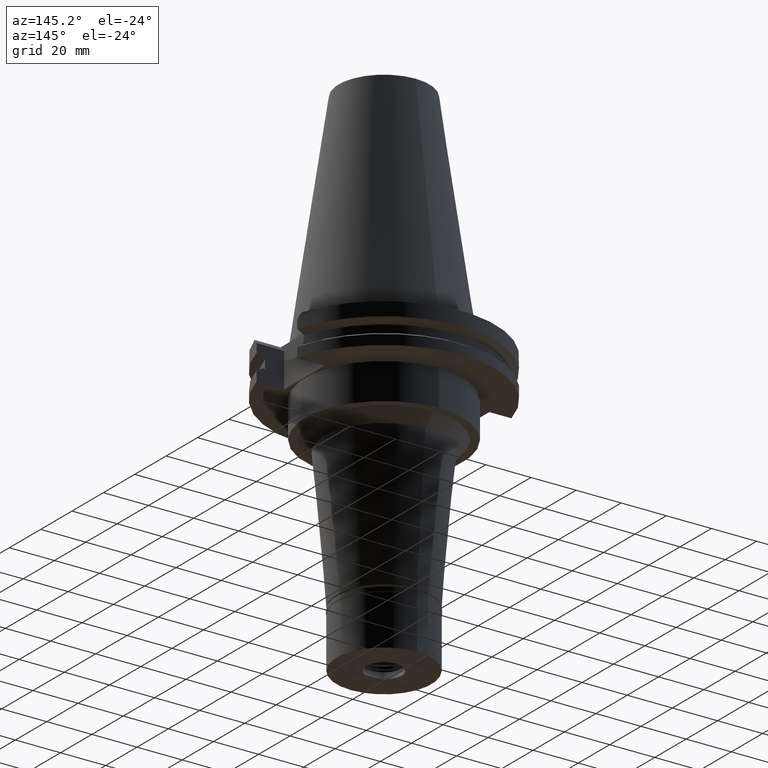
[diagram: clean part render]
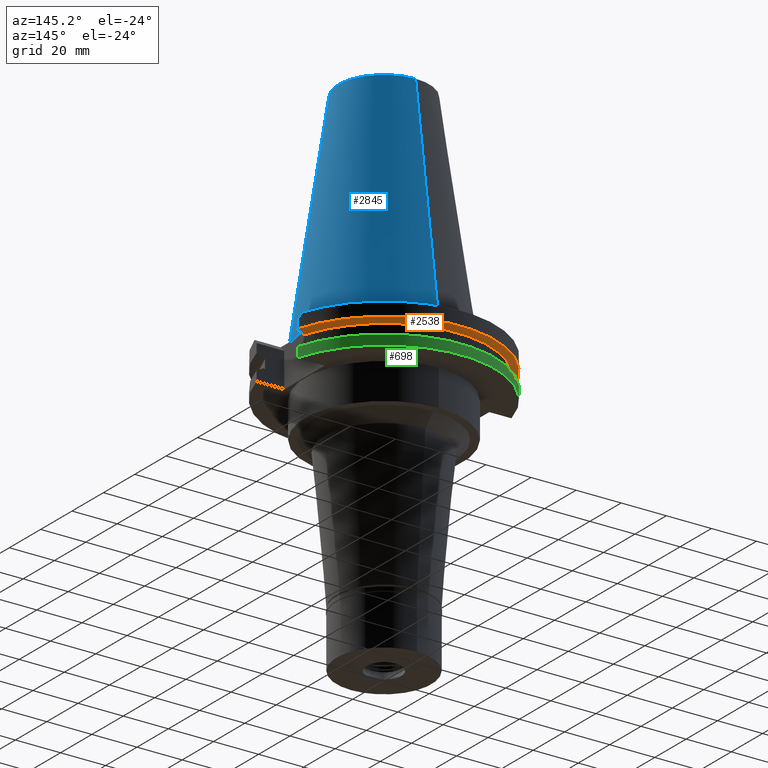
[diagram: same view with three faces highlighted in distinct colors, each labeled with its STEP entity id]
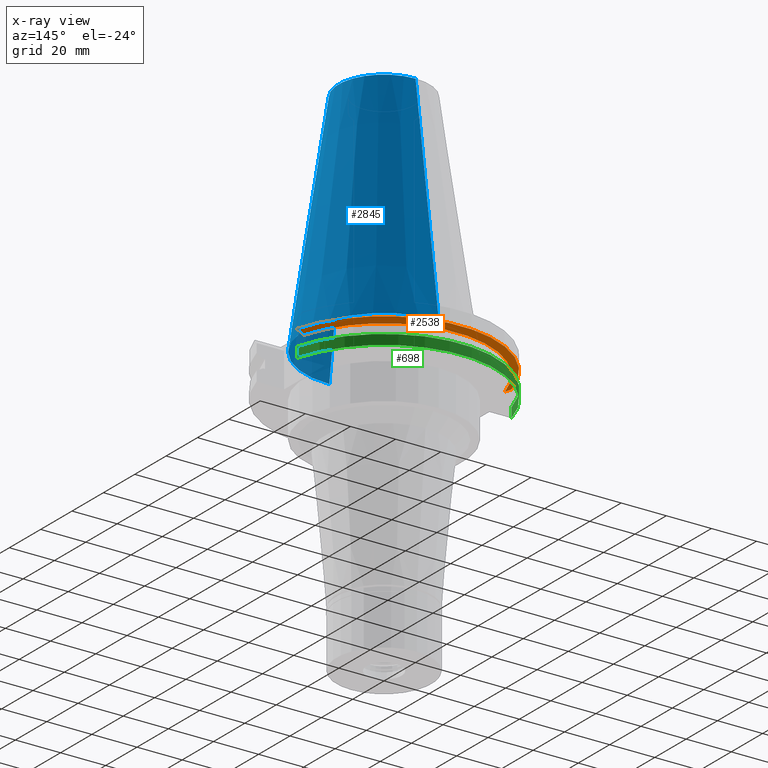
[diagram: x-ray of the same camera — body ghosted, the three highlighted faces saturated]
A machine part, auxiliary view with three faces highlighted in distinct colors.
The next image is the same camera in x-ray (body ghosted, the three faces saturated) — at least one of them is partly hidden behind the body in this view.
Their STEP definitions:

[orange] entity #2538 — the highlighted conical surface has half-angle 60 deg.
#16 = CARTESIAN_POINT ( 'NONE',  ( -44.58657636813000380, 12.95500000000000007, -9.207500000000999663 ) ) ;
#25 = B_SPLINE_CURVE_WITH_KNOTS ( 'NONE', 3,
 ( #498, #189, #1224, #790 ),
 .UNSPECIFIED., .F., .F.,
 ( 4, 4 ),
 ( 0.0000000000000000000, 1.000000000000000000 ),
 .UNSPECIFIED. ) ;
#154 = CARTESIAN_POINT ( 'NONE',  ( 0.0000000000000000000, 1.121722380078999823E-14, -7.601333230925999551 ) ) ;
#189 = CARTESIAN_POINT ( 'NONE',  ( 45.52193300765439687, 12.95500000000000007, -8.688918499396308448 ) ) ;
#222 = VERTEX_POINT ( 'NONE', #1361 ) ;
#331 = AXIS2_PLACEMENT_3D ( 'NONE', #1828, #825, #522 ) ;
#431 = ORIENTED_EDGE ( 'NONE', *, *, #638, .T. ) ;
#498 = CARTESIAN_POINT ( 'NONE',  ( 44.58657636813000380, 12.95500000000000007, -9.207500000000999663 ) ) ;
#522 = DIRECTION ( 'NONE',  ( 0.0000000000000000000, 1.000000000000000000, 0.0000000000000000000 ) ) ;
#627 = B_SPLINE_CURVE_WITH_KNOTS ( 'NONE', 3,
 ( #2330, #2377, #2360, #16 ),
 .UNSPECIFIED., .F., .F.,
 ( 4, 4 ),
 ( 0.0000000000000000000, 1.000000000000000000 ),
 .UNSPECIFIED. ) ;
#638 = EDGE_CURVE ( 'NONE', #222, #1246, #2103, .T. ) ;
#766 = CARTESIAN_POINT ( 'NONE',  ( 0.0000000000000000000, 1.121722380078999823E-14, -9.207500000002999840 ) ) ;
#790 = CARTESIAN_POINT ( 'NONE',  ( 47.47671146204000081, 12.95500000000000007, -7.601333230924999462 ) ) ;
#825 = DIRECTION ( 'NONE',  ( 0.0000000000000000000, 0.0000000000000000000, 1.000000000000000000 ) ) ;
#931 = EDGE_CURVE ( 'NONE', #3238, #1246, #627, .T. ) ;
#1036 = ORIENTED_EDGE ( 'NONE', *, *, #931, .F. ) ;
#1191 = DIRECTION ( 'NONE',  ( 0.9647287063660957562, 0.2632461264922989486, 0.0000000000000000000 ) ) ;
#1216 = DIRECTION ( 'NONE',  ( 0.0000000000000000000, 0.0000000000000000000, 1.000000000000000000 ) ) ;
#1224 = CARTESIAN_POINT ( 'NONE',  ( 46.48531137229106491, 12.95500000000000007, -8.153529576370974752 ) ) ;
#1244 = EDGE_CURVE ( 'NONE', #222, #2148, #25, .T. ) ;
#1245 = DIRECTION ( 'NONE',  ( 0.0000000000000000000, 0.0000000000000000000, 1.000000000000000000 ) ) ;
#1246 = VERTEX_POINT ( 'NONE', #1553 ) ;
#1361 = CARTESIAN_POINT ( 'NONE',  ( 44.58657636813000380, 12.95500000000000007, -9.207500000000999663 ) ) ;
#1553 = CARTESIAN_POINT ( 'NONE',  ( -44.58657636813000380, 12.95500000000000007, -9.207500000000999663 ) ) ;
#1643 = CARTESIAN_POINT ( 'NONE',  ( 47.47671146204000081, 12.95500000000000007, -7.601333230924999462 ) ) ;
#1670 = CARTESIAN_POINT ( 'NONE',  ( -47.47671146204000081, 12.95500000000000007, -7.601333230924999462 ) ) ;
#1828 = CARTESIAN_POINT ( 'NONE',  ( 0.0000000000000000000, 1.121722380078999823E-14, -8.404416615464000984 ) ) ;
#1865 = ORIENTED_EDGE ( 'NONE', *, *, #2362, .F. ) ;
#1958 = AXIS2_PLACEMENT_3D ( 'NONE', #766, #1245, #2275 ) ;
#2083 = AXIS2_PLACEMENT_3D ( 'NONE', #154, #1216, #1191 ) ;
#2103 = CIRCLE ( 'NONE', #1958, 46.43053755052999776 ) ;
#2148 = VERTEX_POINT ( 'NONE', #1643 ) ;
#2275 = DIRECTION ( 'NONE',  ( 0.0000000000000000000, 1.000000000000000000, 0.0000000000000000000 ) ) ;
#2330 = CARTESIAN_POINT ( 'NONE',  ( -47.47671146204000081, 12.95500000000000007, -7.601333230924999462 ) ) ;
#2360 = CARTESIAN_POINT ( 'NONE',  ( -45.52193301400963321, 12.95500000000000007, -8.688918495860947999 ) ) ;
#2362 = EDGE_CURVE ( 'NONE', #2148, #3238, #2694, .T. ) ;
#2377 = CARTESIAN_POINT ( 'NONE',  ( -46.48531137864629414, 12.95500000000000007, -8.153529572835616079 ) ) ;
#2538 = ADVANCED_FACE ( 'NONE', ( #3159 ), #3262, .T. ) ;
#2694 = CIRCLE ( 'NONE', #2083, 49.21250000000001279 ) ;
#2763 = EDGE_LOOP ( 'NONE', ( #2962, #431, #1036, #1865 ) ) ;
#2962 = ORIENTED_EDGE ( 'NONE', *, *, #1244, .F. ) ;
#3159 = FACE_OUTER_BOUND ( 'NONE', #2763, .T. ) ;
#3238 = VERTEX_POINT ( 'NONE', #1670 ) ;
#3262 = CONICAL_SURFACE ( 'NONE', #331, 47.82151877527000039, 1.047197551196400456 ) ;

[blue] entity #2845 — the highlighted conical surface has half-angle 8.297 deg.
#8 = DIRECTION ( 'NONE',  ( 0.0000000000000000000, 1.000000000000000000, 0.0000000000000000000 ) ) ;
#71 = DIRECTION ( 'NONE',  ( 0.0000000000000000000, 1.000000000000000000, 0.0000000000000000000 ) ) ;
#102 = VERTEX_POINT ( 'NONE', #942 ) ;
#188 = VECTOR ( 'NONE', #1457, 1000.000000000000114 ) ;
#270 = DIRECTION ( 'NONE',  ( 0.0000000000000000000, 0.1443069799456937474, -0.9895329683941577192 ) ) ;
#303 = VERTEX_POINT ( 'NONE', #1017 ) ;
#316 = EDGE_LOOP ( 'NONE', ( #2234, #1445, #1660, #1769 ) ) ;
#449 = LINE ( 'NONE', #2007, #188 ) ;
#701 = DIRECTION ( 'NONE',  ( 0.0000000000000000000, -1.000000000000000000, 0.0000000000000000000 ) ) ;
#769 = LINE ( 'NONE', #1272, #3019 ) ;
#942 = CARTESIAN_POINT ( 'NONE',  ( 0.0000000000000000000, -34.92499999999999716, 4.902744876745000264E-13 ) ) ;
#943 = CARTESIAN_POINT ( 'NONE',  ( 0.0000000000000000000, -20.10832422388000040, 101.5999999999999943 ) ) ;
#954 = DIRECTION ( 'NONE',  ( 0.0000000000000000000, 0.0000000000000000000, -1.000000000000000000 ) ) ;
#994 = AXIS2_PLACEMENT_3D ( 'NONE', #2505, #2787, #701 ) ;
#1017 = CARTESIAN_POINT ( 'NONE',  ( 0.0000000000000000000, 34.92499999999999716, 4.902744876745000264E-13 ) ) ;
#1161 = CONICAL_SURFACE ( 'NONE', #994, 27.51666211194000056, 0.1448125860318199565 ) ;
#1272 = CARTESIAN_POINT ( 'NONE',  ( 0.0000000000000000000, 20.10832422387000307, 101.5999999999999943 ) ) ;
#1340 = EDGE_CURVE ( 'NONE', #3061, #1582, #2956, .T. ) ;
#1374 = CARTESIAN_POINT ( 'NONE',  ( 0.0000000000000000000, 1.846767373113999857E-14, 8.242295734816999588E-13 ) ) ;
#1445 = ORIENTED_EDGE ( 'NONE', *, *, #2827, .T. ) ;
#1457 = DIRECTION ( 'NONE',  ( 0.0000000000000000000, -0.1443069799456937474, -0.9895329683941577192 ) ) ;
#1582 = VERTEX_POINT ( 'NONE', #943 ) ;
#1660 = ORIENTED_EDGE ( 'NONE', *, *, #3157, .F. ) ;
#1746 = EDGE_CURVE ( 'NONE', #3061, #303, #769, .T. ) ;
#1769 = ORIENTED_EDGE ( 'NONE', *, *, #1746, .F. ) ;
#1825 = CARTESIAN_POINT ( 'NONE',  ( 0.0000000000000000000, 20.10832422388000040, 101.5999999999999943 ) ) ;
#2007 = CARTESIAN_POINT ( 'NONE',  ( 0.0000000000000000000, -20.10832422387000307, 101.5999999999999943 ) ) ;
#2191 = CIRCLE ( 'NONE', #3122, 34.92499999999999716 ) ;
#2234 = ORIENTED_EDGE ( 'NONE', *, *, #1340, .T. ) ;
#2333 = CARTESIAN_POINT ( 'NONE',  ( 0.0000000000000000000, 1.846767373113999857E-14, 101.5999999999999943 ) ) ;
#2505 = CARTESIAN_POINT ( 'NONE',  ( 0.0000000000000000000, 1.846767373113999857E-14, 50.79999999999999716 ) ) ;
#2744 = AXIS2_PLACEMENT_3D ( 'NONE', #2333, #954, #8 ) ;
#2787 = DIRECTION ( 'NONE',  ( 0.0000000000000000000, 0.0000000000000000000, -1.000000000000000000 ) ) ;
#2827 = EDGE_CURVE ( 'NONE', #1582, #102, #449, .T. ) ;
#2845 = ADVANCED_FACE ( 'NONE', ( #3047 ), #1161, .T. ) ;
#2956 = CIRCLE ( 'NONE', #2744, 20.10832422388000040 ) ;
#3019 = VECTOR ( 'NONE', #270, 1000.000000000000114 ) ;
#3047 = FACE_OUTER_BOUND ( 'NONE', #316, .T. ) ;
#3061 = VERTEX_POINT ( 'NONE', #1825 ) ;
#3122 = AXIS2_PLACEMENT_3D ( 'NONE', #1374, #3223, #71 ) ;
#3157 = EDGE_CURVE ( 'NONE', #303, #102, #2191, .T. ) ;
#3223 = DIRECTION ( 'NONE',  ( 0.0000000000000000000, 0.0000000000000000000, -1.000000000000000000 ) ) ;

[green] entity #698 — the highlighted cylindrical surface (partial cylindrical patch) has radius 49.2125 mm, axis along (0, 0, -1).
#53 = AXIS2_PLACEMENT_3D ( 'NONE', #816, #267, #1851 ) ;
#67 = VECTOR ( 'NONE', #2205, 1000.000000000000000 ) ;
#89 = CARTESIAN_POINT ( 'NONE',  ( 47.47671146204000081, 12.95500000000000007, -19.05000000000000071 ) ) ;
#191 = VERTEX_POINT ( 'NONE', #89 ) ;
#267 = DIRECTION ( 'NONE',  ( 0.0000000000000000000, 0.0000000000000000000, -1.000000000000000000 ) ) ;
#332 = CYLINDRICAL_SURFACE ( 'NONE', #53, 49.21249999999999858 ) ;
#355 = CARTESIAN_POINT ( 'NONE',  ( 0.0000000000000000000, 1.055026073064999954E-14, -14.65366676908000088 ) ) ;
#371 = LINE ( 'NONE', #1112, #513 ) ;
#513 = VECTOR ( 'NONE', #2955, 1000.000000000000000 ) ;
#518 = EDGE_CURVE ( 'NONE', #730, #2352, #697, .T. ) ;
#594 = DIRECTION ( 'NONE',  ( 0.0000000000000000000, 1.000000000000000000, 0.0000000000000000000 ) ) ;
#697 = CIRCLE ( 'NONE', #1292, 49.21250000000001279 ) ;
#698 = ADVANCED_FACE ( 'NONE', ( #1076 ), #332, .T. ) ;
#730 = VERTEX_POINT ( 'NONE', #3187 ) ;
#816 = CARTESIAN_POINT ( 'NONE',  ( 0.0000000000000000000, 2.604272650726999704E-14, 112.6550000000000011 ) ) ;
#850 = ORIENTED_EDGE ( 'NONE', *, *, #1081, .F. ) ;
#951 = VERTEX_POINT ( 'NONE', #1357 ) ;
#1001 = AXIS2_PLACEMENT_3D ( 'NONE', #1359, #1602, #594 ) ;
#1076 = FACE_OUTER_BOUND ( 'NONE', #1493, .T. ) ;
#1081 = EDGE_CURVE ( 'NONE', #730, #951, #1687, .T. ) ;
#1112 = CARTESIAN_POINT ( 'NONE',  ( 47.47671146204000081, 12.95500000000000007, -19.05000000000000071 ) ) ;
#1292 = AXIS2_PLACEMENT_3D ( 'NONE', #355, #1377, #2954 ) ;
#1324 = CIRCLE ( 'NONE', #1001, 49.21249999999999858 ) ;
#1357 = CARTESIAN_POINT ( 'NONE',  ( -47.47671146204000081, 12.95500000000000007, -19.05000000000000071 ) ) ;
#1359 = CARTESIAN_POINT ( 'NONE',  ( 0.0000000000000000000, 2.604272650726999704E-14, -19.05000000000000071 ) ) ;
#1377 = DIRECTION ( 'NONE',  ( 0.0000000000000000000, 0.0000000000000000000, -1.000000000000000000 ) ) ;
#1395 = ORIENTED_EDGE ( 'NONE', *, *, #518, .T. ) ;
#1454 = EDGE_CURVE ( 'NONE', #191, #2352, #371, .T. ) ;
#1492 = ORIENTED_EDGE ( 'NONE', *, *, #3137, .T. ) ;
#1493 = EDGE_LOOP ( 'NONE', ( #2626, #1492, #850, #1395 ) ) ;
#1602 = DIRECTION ( 'NONE',  ( 0.0000000000000000000, 0.0000000000000000000, 1.000000000000000000 ) ) ;
#1687 = LINE ( 'NONE', #2186, #67 ) ;
#1851 = DIRECTION ( 'NONE',  ( 0.0000000000000000000, -1.000000000000000000, 0.0000000000000000000 ) ) ;
#2186 = CARTESIAN_POINT ( 'NONE',  ( -47.47671146204000081, 12.95500000000000007, -14.65366676908000088 ) ) ;
#2205 = DIRECTION ( 'NONE',  ( 1.244486888953999897E-13, -4.808244798230000260E-14, -1.000000000000000000 ) ) ;
#2352 = VERTEX_POINT ( 'NONE', #2789 ) ;
#2626 = ORIENTED_EDGE ( 'NONE', *, *, #1454, .F. ) ;
#2789 = CARTESIAN_POINT ( 'NONE',  ( 47.47671146204000081, 12.95500000000000007, -14.65366676908000088 ) ) ;
#2954 = DIRECTION ( 'NONE',  ( -0.9647287063660957562, 0.2632461264922989486, 0.0000000000000000000 ) ) ;
#2955 = DIRECTION ( 'NONE',  ( 1.341459893287999999E-13, 4.848650216702999599E-14, 1.000000000000000000 ) ) ;
#3137 = EDGE_CURVE ( 'NONE', #191, #951, #1324, .T. ) ;
#3187 = CARTESIAN_POINT ( 'NONE',  ( -47.47671146204000081, 12.95500000000000007, -14.65366676908000088 ) ) ;